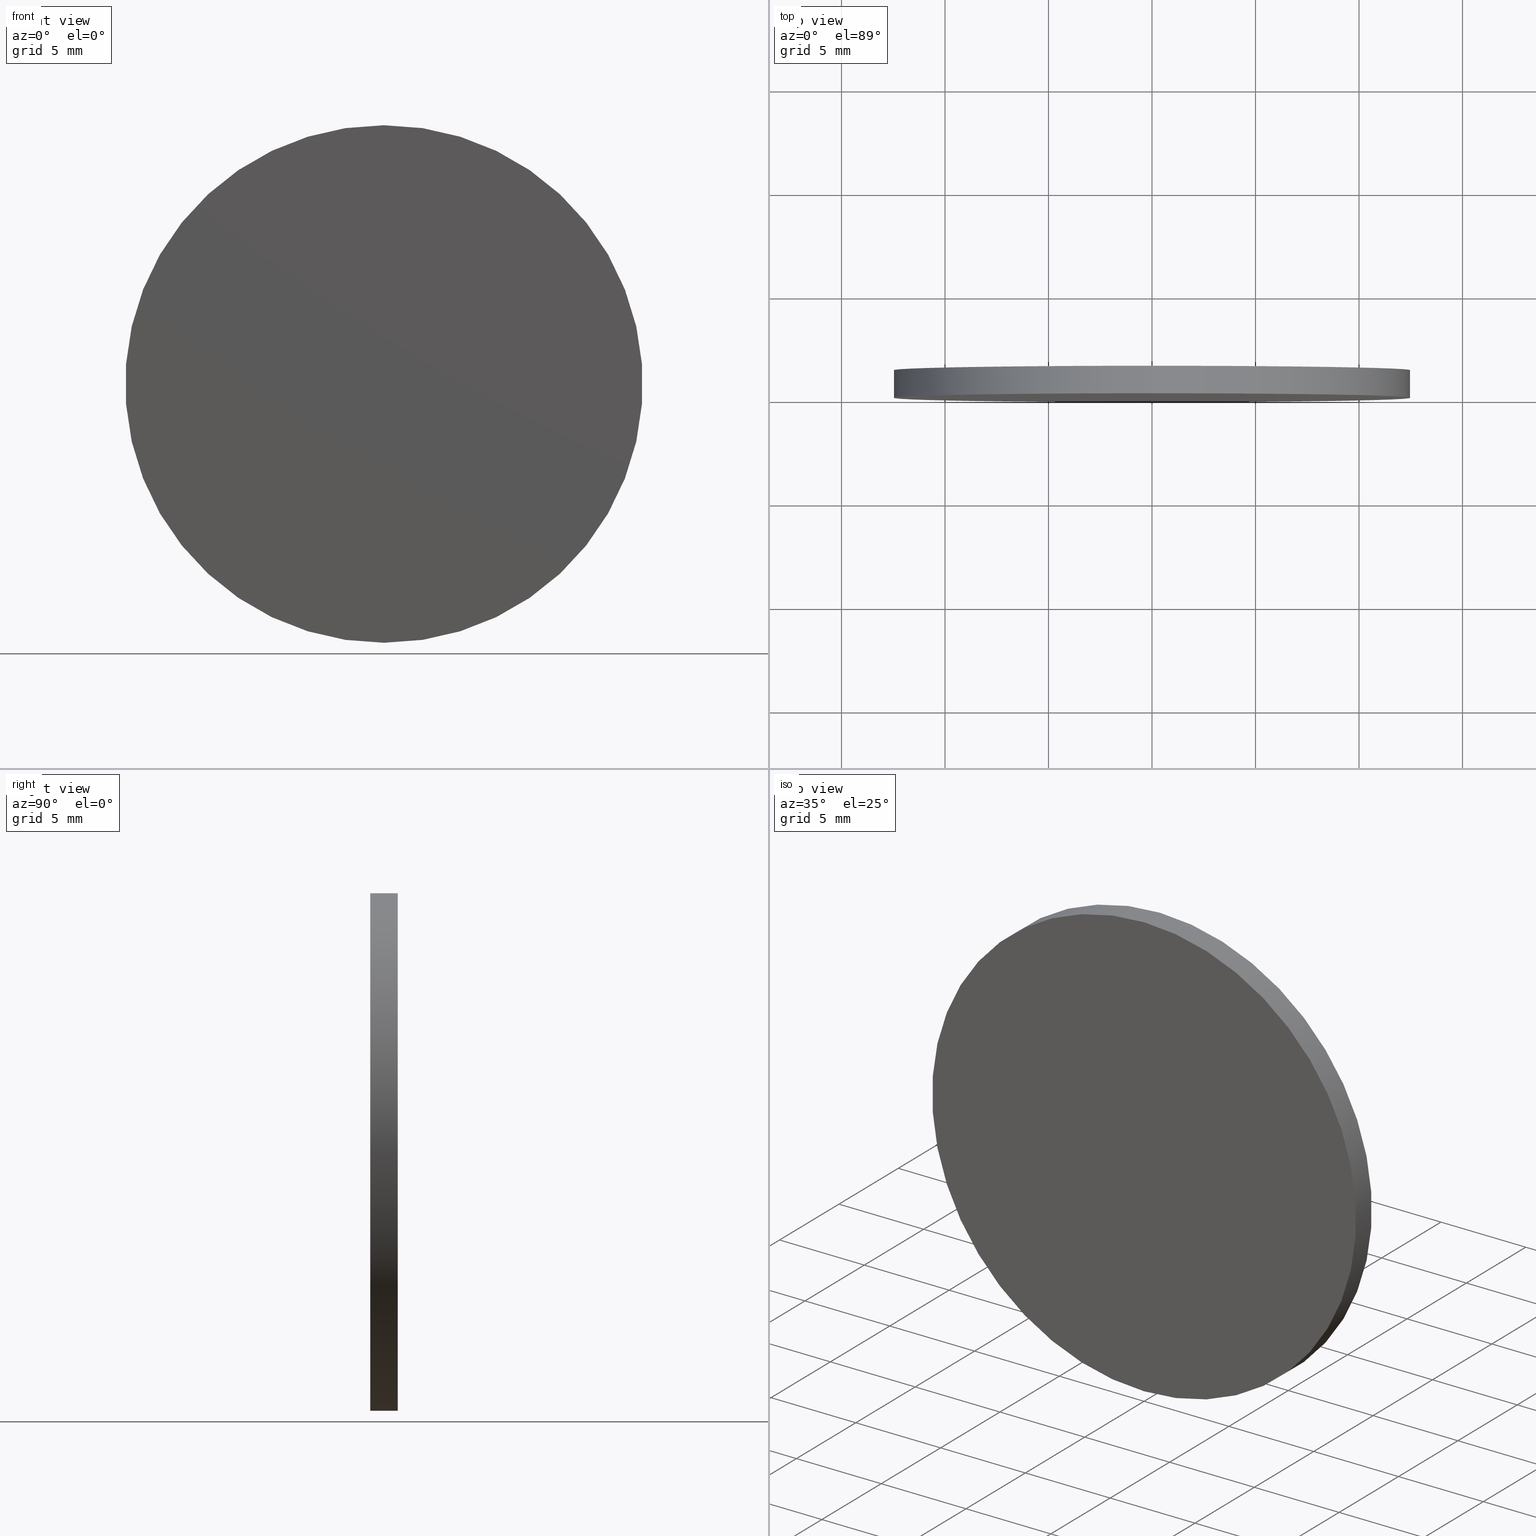
[diagram: canonical four-view strip — front | top / right | iso, engineering-drawing reading convention]
A machine part, canonical four-view strip (front | top / right | iso — engineering-drawing reading convention). The complete STEP part file that produces these views, byte-faithful:
ISO-10303-21;
HEADER;
FILE_DESCRIPTION (( 'STEP AP214' ),
    '1' );
FILE_NAME ('248580.STEP',
    '2019-08-06T02:41:08',
    ( 'user' ),
    ( '΢���й�' ),
    'SwSTEP 2.0',
    'SolidWorks 2016',
    '' );
FILE_SCHEMA (( 'AUTOMOTIVE_DESIGN' ));
ENDSEC;

DATA;
#1 = VECTOR ( 'NONE', #100, 1000.000000000000000 ) ;
#2 = EDGE_LOOP ( 'NONE', ( #135, #10, #47, #6 ) ) ;
#3 = PRESENTATION_LAYER_ASSIGNMENT (  '', '', ( #133 ) ) ;
#4 = SURFACE_SIDE_STYLE ('',( #60 ) ) ;
#5 = ADVANCED_FACE ( 'NONE', ( #24 ), #23, .T. ) ;
#6 = ORIENTED_EDGE ( 'NONE', *, *, #57, .T. ) ;
#7 = CARTESIAN_POINT ( 'NONE',  ( 0.0000000000000000000, 0.0000000000000000000, 0.0000000000000000000 ) ) ;
#8 = ADVANCED_BREP_SHAPE_REPRESENTATION ( '248580', ( #89, #105 ), #50 ) ;
#9 = DIRECTION ( 'NONE',  ( 0.0000000000000000000, 0.0000000000000000000, -1.000000000000000000 ) ) ;
#10 = ORIENTED_EDGE ( 'NONE', *, *, #67, .F. ) ;
#11 = MECHANICAL_DESIGN_GEOMETRIC_PRESENTATION_REPRESENTATION (  '', ( #133 ), #18 ) ;
#12 = AXIS2_PLACEMENT_3D ( 'NONE', #139, #113, #71 ) ;
#13 = FACE_OUTER_BOUND ( 'NONE', #2, .T. ) ;
#14 = EDGE_LOOP ( 'NONE', ( #37, #84, #59, #39 ) ) ;
#15 = UNCERTAINTY_MEASURE_WITH_UNIT (LENGTH_MEASURE( 1.000000000000000100E-005 ), #44, 'distance_accuracy_value', 'NONE');
#16 = APPLICATION_PROTOCOL_DEFINITION ( 'draft international standard', 'automotive_design', 1998, #94 ) ;
#17 = ORIENTED_EDGE ( 'NONE', *, *, #67, .T. ) ;
#18 =( GEOMETRIC_REPRESENTATION_CONTEXT ( 3 ) GLOBAL_UNCERTAINTY_ASSIGNED_CONTEXT ( ( #20 ) ) GLOBAL_UNIT_ASSIGNED_CONTEXT ( ( #102, #66, #120 ) ) REPRESENTATION_CONTEXT ( 'NONE', 'WORKASPACE' ) );
#19 = DIRECTION ( 'NONE',  ( -0.0000000000000000000, -1.000000000000000000, -0.0000000000000000000 ) ) ;
#20 = UNCERTAINTY_MEASURE_WITH_UNIT (LENGTH_MEASURE( 1.000000000000000100E-005 ), #102, 'distance_accuracy_value', 'NONE');
#21 = DIRECTION ( 'NONE',  ( -0.0000000000000000000, -1.000000000000000000, -0.0000000000000000000 ) ) ;
#22 = CARTESIAN_POINT ( 'NONE',  ( 0.0000000000000000000, 1.330000000000000100, 0.0000000000000000000 ) ) ;
#23 = CYLINDRICAL_SURFACE ( 'NONE', #43, 12.50000000000000000 ) ;
#24 = FACE_OUTER_BOUND ( 'NONE', #14, .T. ) ;
#25 = PRODUCT_CONTEXT ( 'NONE', #85, 'mechanical' ) ;
#26 = EDGE_CURVE ( 'NONE', #49, #76, #114, .T. ) ;
#27 = FACE_OUTER_BOUND ( 'NONE', #55, .T. ) ;
#28 = ORIENTED_EDGE ( 'NONE', *, *, #36, .F. ) ;
#29 = COLOUR_RGB ( '',1.000000000000000000, 1.000000000000000000, 1.000000000000000000 ) ;
#30 = DIRECTION ( 'NONE',  ( 0.0000000000000000000, 0.0000000000000000000, -1.000000000000000000 ) ) ;
#31 = PRODUCT_DEFINITION_SHAPE ( 'NONE', 'NONE',  #109 ) ;
#32 = DIRECTION ( 'NONE',  ( 0.0000000000000000000, -0.0000000000000000000, 1.000000000000000000 ) ) ;
#33 =( NAMED_UNIT ( * ) SI_UNIT ( $, .STERADIAN. ) SOLID_ANGLE_UNIT ( ) );
#34 = DIRECTION ( 'NONE',  ( 0.0000000000000000000, -0.0000000000000000000, 1.000000000000000000 ) ) ;
#35 = SURFACE_STYLE_FILL_AREA ( #80 ) ;
#36 = EDGE_CURVE ( 'NONE', #119, #72, #115, .T. ) ;
#37 = ORIENTED_EDGE ( 'NONE', *, *, #26, .F. ) ;
#38 = DIRECTION ( 'NONE',  ( 0.0000000000000000000, 0.0000000000000000000, 1.000000000000000000 ) ) ;
#39 = ORIENTED_EDGE ( 'NONE', *, *, #106, .F. ) ;
#40 = PRODUCT ( '248580', '248580', '', ( #25 ) ) ;
#41 = AXIS2_PLACEMENT_3D ( 'NONE', #103, #45, #34 ) ;
#42 = SURFACE_STYLE_USAGE ( .BOTH. , #138 ) ;
#43 = AXIS2_PLACEMENT_3D ( 'NONE', #111, #19, #30 ) ;
#44 =( LENGTH_UNIT ( ) NAMED_UNIT ( * ) SI_UNIT ( .MILLI., .METRE. ) );
#45 = DIRECTION ( 'NONE',  ( 0.0000000000000000000, 1.000000000000000000, 0.0000000000000000000 ) ) ;
#46 = FACE_OUTER_BOUND ( 'NONE', #93, .T. ) ;
#47 = ORIENTED_EDGE ( 'NONE', *, *, #106, .T. ) ;
#48 = CARTESIAN_POINT ( 'NONE',  ( 0.0000000000000000000, 1.330000000000000100, -12.50000000000000000 ) ) ;
#49 = VERTEX_POINT ( 'NONE', #53 ) ;
#50 =( GEOMETRIC_REPRESENTATION_CONTEXT ( 3 ) GLOBAL_UNCERTAINTY_ASSIGNED_CONTEXT ( ( #15 ) ) GLOBAL_UNIT_ASSIGNED_CONTEXT ( ( #44, #112, #33 ) ) REPRESENTATION_CONTEXT ( 'NONE', 'WORKASPACE' ) );
#51 = EDGE_CURVE ( 'NONE', #49, #119, #140, .T. ) ;
#52 = ADVANCED_FACE ( 'NONE', ( #27 ), #127, .T. ) ;
#53 = CARTESIAN_POINT ( 'NONE',  ( 1.530808498934191500E-015, 1.330000000000000100, 12.50000000000000000 ) ) ;
#54 = PLANE ( 'NONE',  #41 ) ;
#55 = EDGE_LOOP ( 'NONE', ( #17, #99 ) ) ;
#56 = AXIS2_PLACEMENT_3D ( 'NONE', #121, #21, #9 ) ;
#57 = EDGE_CURVE ( 'NONE', #72, #119, #58, .T. ) ;
#58 = CIRCLE ( 'NONE', #12, 12.50000000000000000 ) ;
#59 = ORIENTED_EDGE ( 'NONE', *, *, #36, .T. ) ;
#60 = SURFACE_STYLE_FILL_AREA ( #79 ) ;
#61 =( NAMED_UNIT ( * ) PLANE_ANGLE_UNIT ( ) SI_UNIT ( $, .RADIAN. ) );
#62 = COLOUR_RGB ( '',1.000000000000000000, 1.000000000000000000, 1.000000000000000000 ) ;
#63 = DIRECTION ( 'NONE',  ( 0.0000000000000000000, 0.0000000000000000000, 1.000000000000000000 ) ) ;
#64 = STYLED_ITEM ( 'NONE', ( #91 ), #8 ) ;
#65 = DIRECTION ( 'NONE',  ( 0.0000000000000000000, 0.0000000000000000000, 1.000000000000000000 ) ) ;
#66 =( NAMED_UNIT ( * ) PLANE_ANGLE_UNIT ( ) SI_UNIT ( $, .RADIAN. ) );
#67 = EDGE_CURVE ( 'NONE', #76, #49, #118, .T. ) ;
#68 = CARTESIAN_POINT ( 'NONE',  ( 1.530808498934191500E-015, 0.0000000000000000000, 12.50000000000000000 ) ) ;
#69 = DIRECTION ( 'NONE',  ( 0.0000000000000000000, 0.0000000000000000000, 1.000000000000000000 ) ) ;
#70 = CARTESIAN_POINT ( 'NONE',  ( 0.0000000000000000000, 0.0000000000000000000, -12.50000000000000000 ) ) ;
#71 = DIRECTION ( 'NONE',  ( 0.0000000000000000000, 0.0000000000000000000, 1.000000000000000000 ) ) ;
#72 = VERTEX_POINT ( 'NONE', #70 ) ;
#73 = PRESENTATION_LAYER_ASSIGNMENT (  '', '', ( #64 ) ) ;
#74 = SURFACE_STYLE_USAGE ( .BOTH. , #4 ) ;
#75 = SHAPE_DEFINITION_REPRESENTATION ( #31, #8 ) ;
#76 = VERTEX_POINT ( 'NONE', #48 ) ;
#77 = CARTESIAN_POINT ( 'NONE',  ( 0.0000000000000000000, 1.330000000000000100, 0.0000000000000000000 ) ) ;
#78 = DIRECTION ( 'NONE',  ( -0.0000000000000000000, -1.000000000000000000, -0.0000000000000000000 ) ) ;
#79 = FILL_AREA_STYLE ('',( #137 ) ) ;
#80 = FILL_AREA_STYLE ('',( #122 ) ) ;
#81 = CLOSED_SHELL ( 'NONE', ( #5, #108, #52, #98 ) ) ;
#82 = MECHANICAL_DESIGN_GEOMETRIC_PRESENTATION_REPRESENTATION (  '', ( #64 ), #87 ) ;
#83 = AXIS2_PLACEMENT_3D ( 'NONE', #77, #134, #63 ) ;
#84 = ORIENTED_EDGE ( 'NONE', *, *, #51, .T. ) ;
#85 = APPLICATION_CONTEXT ( 'automotive_design' ) ;
#86 = LINE ( 'NONE', #88, #1 ) ;
#87 =( GEOMETRIC_REPRESENTATION_CONTEXT ( 3 ) GLOBAL_UNCERTAINTY_ASSIGNED_CONTEXT ( ( #125 ) ) GLOBAL_UNIT_ASSIGNED_CONTEXT ( ( #132, #61, #124 ) ) REPRESENTATION_CONTEXT ( 'NONE', 'WORKASPACE' ) );
#88 = CARTESIAN_POINT ( 'NONE',  ( 0.0000000000000000000, 1.330000000000000100, -12.50000000000000000 ) ) ;
#89 = MANIFOLD_SOLID_BREP ( '͹̨-����1', #81 ) ;
#90 = VECTOR ( 'NONE', #78, 1000.000000000000000 ) ;
#91 = PRESENTATION_STYLE_ASSIGNMENT (( #74 ) ) ;
#92 = PRESENTATION_STYLE_ASSIGNMENT (( #42 ) ) ;
#93 = EDGE_LOOP ( 'NONE', ( #104, #28 ) ) ;
#94 = APPLICATION_CONTEXT ( 'automotive_design' ) ;
#95 = PRODUCT_DEFINITION_CONTEXT ( 'detailed design', #94, 'design' ) ;
#96 = APPLICATION_PROTOCOL_DEFINITION ( 'draft international standard', 'automotive_design', 1998, #85 ) ;
#97 = AXIS2_PLACEMENT_3D ( 'NONE', #7, #101, #65 ) ;
#98 = ADVANCED_FACE ( 'NONE', ( #46 ), #54, .F. ) ;
#99 = ORIENTED_EDGE ( 'NONE', *, *, #26, .T. ) ;
#100 = DIRECTION ( 'NONE',  ( -0.0000000000000000000, -1.000000000000000000, -0.0000000000000000000 ) ) ;
#101 = DIRECTION ( 'NONE',  ( 0.0000000000000000000, 1.000000000000000000, 0.0000000000000000000 ) ) ;
#102 =( LENGTH_UNIT ( ) NAMED_UNIT ( * ) SI_UNIT ( .MILLI., .METRE. ) );
#103 = CARTESIAN_POINT ( 'NONE',  ( 0.0000000000000000000, 0.0000000000000000000, 0.0000000000000000000 ) ) ;
#104 = ORIENTED_EDGE ( 'NONE', *, *, #57, .F. ) ;
#105 = AXIS2_PLACEMENT_3D ( 'NONE', #117, #38, #107 ) ;
#106 = EDGE_CURVE ( 'NONE', #76, #72, #86, .T. ) ;
#107 = DIRECTION ( 'NONE',  ( 1.000000000000000000, 0.0000000000000000000, 0.0000000000000000000 ) ) ;
#108 = ADVANCED_FACE ( 'NONE', ( #13 ), #126, .T. ) ;
#109 = PRODUCT_DEFINITION ( 'δ֪', '', #116, #95 ) ;
#110 = CARTESIAN_POINT ( 'NONE',  ( 1.530808498934191500E-015, 1.330000000000000100, 12.50000000000000000 ) ) ;
#111 = CARTESIAN_POINT ( 'NONE',  ( 0.0000000000000000000, 1.330000000000000100, 0.0000000000000000000 ) ) ;
#112 =( NAMED_UNIT ( * ) PLANE_ANGLE_UNIT ( ) SI_UNIT ( $, .RADIAN. ) );
#113 = DIRECTION ( 'NONE',  ( 0.0000000000000000000, 1.000000000000000000, 0.0000000000000000000 ) ) ;
#114 = CIRCLE ( 'NONE', #83, 12.50000000000000000 ) ;
#115 = CIRCLE ( 'NONE', #97, 12.50000000000000000 ) ;
#116 = PRODUCT_DEFINITION_FORMATION_WITH_SPECIFIED_SOURCE ( '�κ�', '', #40, .NOT_KNOWN. ) ;
#117 = CARTESIAN_POINT ( 'NONE',  ( 0.0000000000000000000, 0.0000000000000000000, 0.0000000000000000000 ) ) ;
#118 = CIRCLE ( 'NONE', #131, 12.50000000000000000 ) ;
#119 = VERTEX_POINT ( 'NONE', #68 ) ;
#120 =( NAMED_UNIT ( * ) SI_UNIT ( $, .STERADIAN. ) SOLID_ANGLE_UNIT ( ) );
#121 = CARTESIAN_POINT ( 'NONE',  ( 0.0000000000000000000, 1.330000000000000100, 0.0000000000000000000 ) ) ;
#122 = FILL_AREA_STYLE_COLOUR ( '', #62 ) ;
#123 = PRODUCT_RELATED_PRODUCT_CATEGORY ( 'part', '', ( #40 ) ) ;
#124 =( NAMED_UNIT ( * ) SI_UNIT ( $, .STERADIAN. ) SOLID_ANGLE_UNIT ( ) );
#125 = UNCERTAINTY_MEASURE_WITH_UNIT (LENGTH_MEASURE( 1.000000000000000100E-005 ), #132, 'distance_accuracy_value', 'NONE');
#126 = CYLINDRICAL_SURFACE ( 'NONE', #56, 12.50000000000000000 ) ;
#127 = PLANE ( 'NONE',  #136 ) ;
#128 = DIRECTION ( 'NONE',  ( 0.0000000000000000000, 1.000000000000000000, 0.0000000000000000000 ) ) ;
#129 = DIRECTION ( 'NONE',  ( 0.0000000000000000000, 1.000000000000000000, 0.0000000000000000000 ) ) ;
#130 = CARTESIAN_POINT ( 'NONE',  ( 0.0000000000000000000, 1.330000000000000100, 0.0000000000000000000 ) ) ;
#131 = AXIS2_PLACEMENT_3D ( 'NONE', #130, #129, #69 ) ;
#132 =( LENGTH_UNIT ( ) NAMED_UNIT ( * ) SI_UNIT ( .MILLI., .METRE. ) );
#133 = STYLED_ITEM ( 'NONE', ( #92 ), #89 ) ;
#134 = DIRECTION ( 'NONE',  ( 0.0000000000000000000, 1.000000000000000000, 0.0000000000000000000 ) ) ;
#135 = ORIENTED_EDGE ( 'NONE', *, *, #51, .F. ) ;
#136 = AXIS2_PLACEMENT_3D ( 'NONE', #22, #128, #32 ) ;
#137 = FILL_AREA_STYLE_COLOUR ( '', #29 ) ;
#138 = SURFACE_SIDE_STYLE ('',( #35 ) ) ;
#139 = CARTESIAN_POINT ( 'NONE',  ( 0.0000000000000000000, 0.0000000000000000000, 0.0000000000000000000 ) ) ;
#140 = LINE ( 'NONE', #110, #90 ) ;
ENDSEC;
END-ISO-10303-21;
